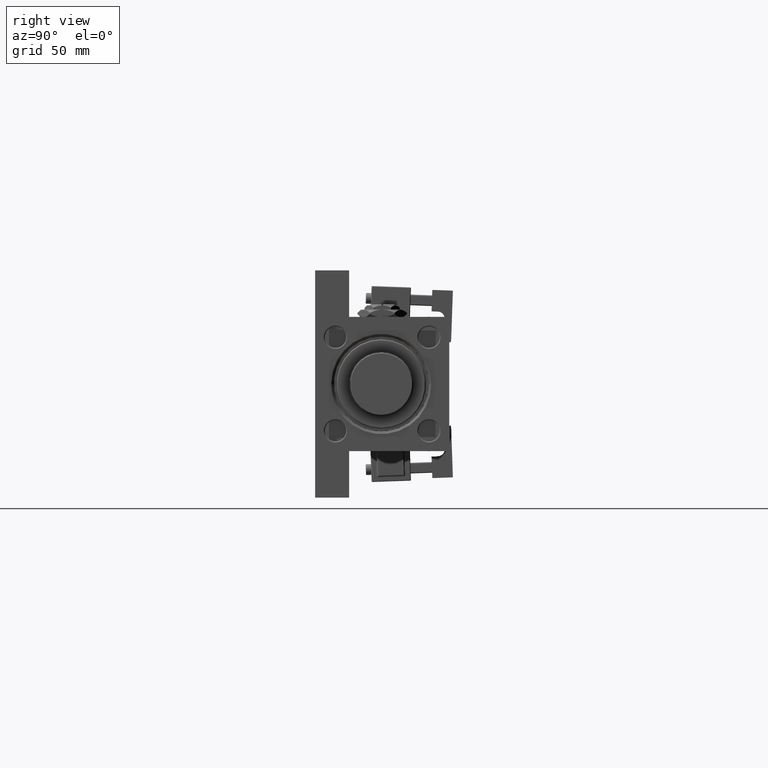
[diagram: clean part render]
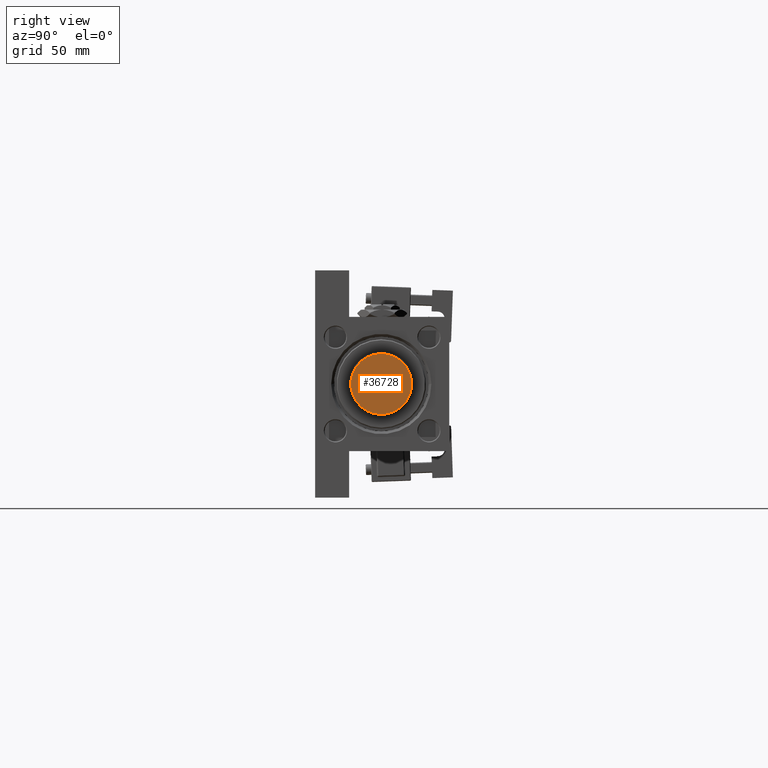
[diagram: same view with one face highlighted and labeled with its STEP entity id]
A machine part, right view. The second image highlights one B-rep face of the part: STEP entity #36728.
In plain terms, the highlighted planar face has unit normal (1, 0, 0).
Its self-contained STEP definition (entity closure, byte-faithful):
#1809 = CARTESIAN_POINT ( 'NONE',  ( 0.000000000000000000, 0.000000000000000000, 0.000000000000000000 ) ) ;
#3334 = CARTESIAN_POINT ( 'NONE',  ( 17.00000000000000355, 0.000000000000000000, 0.000000000000000000 ) ) ;
#9314 = DIRECTION ( 'NONE',  ( 1.000000000000000000, 0.000000000000000000, -0.000000000000000000 ) ) ;
#11901 = CARTESIAN_POINT ( 'NONE',  ( -17.00000000000000355, 2.112515728529184856E-15, 0.000000000000000000 ) ) ;
#12143 = AXIS2_PLACEMENT_3D ( 'NONE', #25733, #29440, #9314 ) ;
#13280 = FACE_OUTER_BOUND ( 'NONE', #29118, .T. ) ;
#14475 = CIRCLE ( 'NONE', #22962, 17.00000000000000355 ) ;
#18464 = DIRECTION ( 'NONE',  ( 0.000000000000000000, 0.000000000000000000, 1.000000000000000000 ) ) ;
#19942 = CARTESIAN_POINT ( 'NONE',  ( 0.000000000000000000, 0.000000000000000000, 0.000000000000000000 ) ) ;
#20879 = CIRCLE ( 'NONE', #50485, 17.00000000000000355 ) ;
#22962 = AXIS2_PLACEMENT_3D ( 'NONE', #19942, #36103, #51989 ) ;
#24542 = VERTEX_POINT ( 'NONE', #11901 ) ;
#25733 = CARTESIAN_POINT ( 'NONE',  ( 0.000000000000000000, 0.000000000000000000, 0.000000000000000000 ) ) ;
#29118 = EDGE_LOOP ( 'NONE', ( #36099, #49889 ) ) ;
#29440 = DIRECTION ( 'NONE',  ( 0.000000000000000000, 0.000000000000000000, 1.000000000000000000 ) ) ;
#31305 = EDGE_CURVE ( 'NONE', #37460, #24542, #14475, .T. ) ;
#36099 = ORIENTED_EDGE ( 'NONE', *, *, #31305, .T. ) ;
#36103 = DIRECTION ( 'NONE',  ( 0.000000000000000000, 0.000000000000000000, 1.000000000000000000 ) ) ;
#36728 = ADVANCED_FACE ( 'NONE', ( #13280 ), #50105, .T. ) ;
#37460 = VERTEX_POINT ( 'NONE', #3334 ) ;
#46733 = EDGE_CURVE ( 'NONE', #24542, #37460, #20879, .T. ) ;
#49889 = ORIENTED_EDGE ( 'NONE', *, *, #46733, .T. ) ;
#50105 = PLANE ( 'NONE',  #12143 ) ;
#50485 = AXIS2_PLACEMENT_3D ( 'NONE', #1809, #18464, #50785 ) ;
#50785 = DIRECTION ( 'NONE',  ( 1.000000000000000000, 0.000000000000000000, 0.000000000000000000 ) ) ;
#51989 = DIRECTION ( 'NONE',  ( 1.000000000000000000, 0.000000000000000000, 0.000000000000000000 ) ) ;